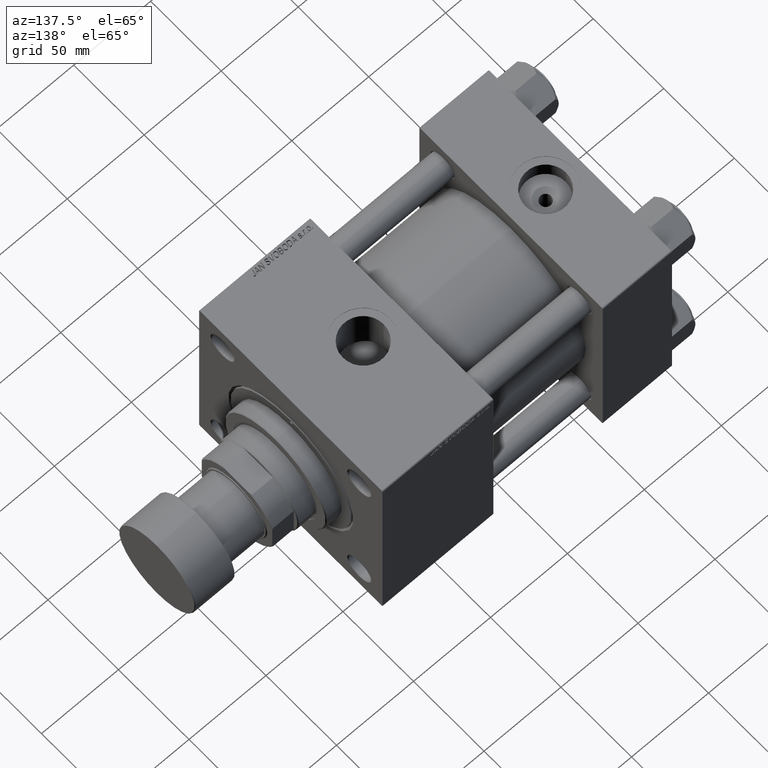
[diagram: clean part render]
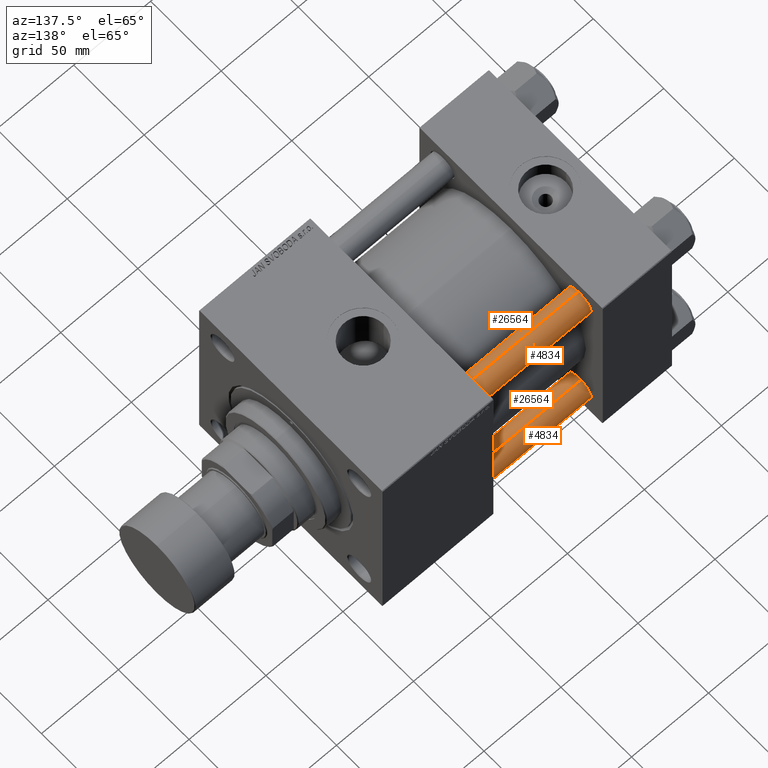
[diagram: same view with one multi-face feature highlighted, each face labeled with its STEP entity id]
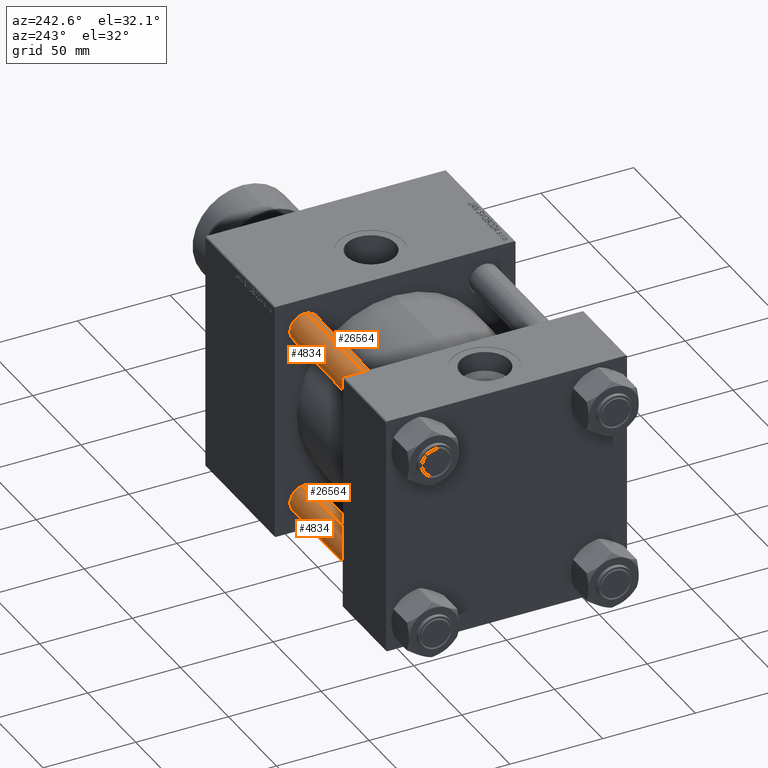
[diagram: same view with one multi-face feature highlighted, each face labeled with its STEP entity id]
A machine part, auxiliary view. The highlighted faces form ONE feature: a constant-radius fillet chain: 4 tangent blend faces with common blend radius 8 mm. The faces share edges in the B-rep.
A second angle (auxiliary view) of the same feature is appended — it is thin or edge-on in the first view.
Their STEP definitions:
[1] entity #4834 (Cylinder):
#216 = ORIENTED_EDGE ( 'NONE', *, *, #28039, .T. ) ;
#1805 = CYLINDRICAL_SURFACE ( 'NONE', #33446, 8.000000000000000000 ) ;
#3067 = CARTESIAN_POINT ( 'NONE',  ( 0.000000000000000000, 0.000000000000000000, 0.5000000000000281997 ) ) ;
#4834 = ADVANCED_FACE ( 'NONE', ( #38309 ), #1805, .T. ) ;
#5837 = DIRECTION ( 'NONE',  ( -0.000000000000000000, -0.000000000000000000, -1.000000000000000000 ) ) ;
#9606 = CARTESIAN_POINT ( 'NONE',  ( 0.000000000000000000, 0.000000000000000000, 149.0000000000000000 ) ) ;
#10481 = VERTEX_POINT ( 'NONE', #47205 ) ;
#10482 = ORIENTED_EDGE ( 'NONE', *, *, #31872, .T. ) ;
#11809 = LINE ( 'NONE', #15036, #51042 ) ;
#11877 = LINE ( 'NONE', #51846, #50621 ) ;
#12466 = EDGE_CURVE ( 'NONE', #10481, #46199, #11809, .T. ) ;
#12677 = DIRECTION ( 'NONE',  ( 0.000000000000000000, 0.000000000000000000, -1.000000000000000000 ) ) ;
#15036 = CARTESIAN_POINT ( 'NONE',  ( -8.000000000000000000, 0.000000000000000000, 149.0000000000000000 ) ) ;
#17611 = EDGE_LOOP ( 'NONE', ( #10482, #216, #37204, #42153 ) ) ;
#18332 = CARTESIAN_POINT ( 'NONE',  ( 8.000000000000000000, 9.797174393178825657E-16, 148.5000000000000000 ) ) ;
#22394 = AXIS2_PLACEMENT_3D ( 'NONE', #33080, #12677, #49426 ) ;
#23229 = VERTEX_POINT ( 'NONE', #37042 ) ;
#27249 = CIRCLE ( 'NONE', #43498, 8.000000000000000000 ) ;
#27890 = VERTEX_POINT ( 'NONE', #18332 ) ;
#28039 = EDGE_CURVE ( 'NONE', #27890, #23229, #11877, .T. ) ;
#28040 = DIRECTION ( 'NONE',  ( -0.000000000000000000, -0.000000000000000000, 1.000000000000000000 ) ) ;
#28176 = DIRECTION ( 'NONE',  ( -0.000000000000000000, -0.000000000000000000, -1.000000000000000000 ) ) ;
#28247 = DIRECTION ( 'NONE',  ( -0.000000000000000000, -0.000000000000000000, -1.000000000000000000 ) ) ;
#28755 = CARTESIAN_POINT ( 'NONE',  ( -8.000000000000000000, 0.000000000000000000, 0.5000000000000281997 ) ) ;
#31872 = EDGE_CURVE ( 'NONE', #10481, #27890, #51540, .T. ) ;
#33080 = CARTESIAN_POINT ( 'NONE',  ( 0.000000000000000000, 0.000000000000000000, 148.5000000000000000 ) ) ;
#33446 = AXIS2_PLACEMENT_3D ( 'NONE', #9606, #5837, #47158 ) ;
#37042 = CARTESIAN_POINT ( 'NONE',  ( 8.000000000000000000, 9.797174393178825657E-16, 0.5000000000000281997 ) ) ;
#37204 = ORIENTED_EDGE ( 'NONE', *, *, #52127, .T. ) ;
#38309 = FACE_OUTER_BOUND ( 'NONE', #17611, .T. ) ;
#40107 = DIRECTION ( 'NONE',  ( 1.000000000000000000, 0.000000000000000000, 0.000000000000000000 ) ) ;
#42153 = ORIENTED_EDGE ( 'NONE', *, *, #12466, .F. ) ;
#43498 = AXIS2_PLACEMENT_3D ( 'NONE', #3067, #28040, #40107 ) ;
#46199 = VERTEX_POINT ( 'NONE', #28755 ) ;
#47158 = DIRECTION ( 'NONE',  ( -1.000000000000000000, 0.000000000000000000, 0.000000000000000000 ) ) ;
#47205 = CARTESIAN_POINT ( 'NONE',  ( -8.000000000000000000, 0.000000000000000000, 148.5000000000000000 ) ) ;
#49426 = DIRECTION ( 'NONE',  ( 1.000000000000000000, 0.000000000000000000, 0.000000000000000000 ) ) ;
#50621 = VECTOR ( 'NONE', #28247, 1000.000000000000000 ) ;
#51042 = VECTOR ( 'NONE', #28176, 1000.000000000000000 ) ;
#51540 = CIRCLE ( 'NONE', #22394, 8.000000000000000000 ) ;
#51846 = CARTESIAN_POINT ( 'NONE',  ( 8.000000000000000000, 9.797174393178825657E-16, 149.0000000000000000 ) ) ;
#52127 = EDGE_CURVE ( 'NONE', #23229, #46199, #27249, .T. ) ;
[2] entity #26564 (Cylinder):
#2650 = ORIENTED_EDGE ( 'NONE', *, *, #12466, .T. ) ;
#3621 = DIRECTION ( 'NONE',  ( 0.000000000000000000, 0.000000000000000000, -1.000000000000000000 ) ) ;
#4154 = DIRECTION ( 'NONE',  ( 1.000000000000000000, 0.000000000000000000, 0.000000000000000000 ) ) ;
#4967 = DIRECTION ( 'NONE',  ( -1.000000000000000000, 0.000000000000000000, 0.000000000000000000 ) ) ;
#6704 = EDGE_CURVE ( 'NONE', #46199, #23229, #36930, .T. ) ;
#8187 = AXIS2_PLACEMENT_3D ( 'NONE', #11962, #3621, #4154 ) ;
#10179 = CARTESIAN_POINT ( 'NONE',  ( 0.000000000000000000, 0.000000000000000000, 0.5000000000000281997 ) ) ;
#10481 = VERTEX_POINT ( 'NONE', #47205 ) ;
#11809 = LINE ( 'NONE', #15036, #51042 ) ;
#11877 = LINE ( 'NONE', #51846, #50621 ) ;
#11962 = CARTESIAN_POINT ( 'NONE',  ( 0.000000000000000000, 0.000000000000000000, 148.5000000000000000 ) ) ;
#12466 = EDGE_CURVE ( 'NONE', #10481, #46199, #11809, .T. ) ;
#13287 = CYLINDRICAL_SURFACE ( 'NONE', #23203, 8.000000000000000000 ) ;
#15036 = CARTESIAN_POINT ( 'NONE',  ( -8.000000000000000000, 0.000000000000000000, 149.0000000000000000 ) ) ;
#17075 = DIRECTION ( 'NONE',  ( -0.000000000000000000, -0.000000000000000000, -1.000000000000000000 ) ) ;
#17442 = AXIS2_PLACEMENT_3D ( 'NONE', #10179, #26549, #42895 ) ;
#17583 = FACE_OUTER_BOUND ( 'NONE', #46475, .T. ) ;
#18332 = CARTESIAN_POINT ( 'NONE',  ( 8.000000000000000000, 9.797174393178825657E-16, 148.5000000000000000 ) ) ;
#23203 = AXIS2_PLACEMENT_3D ( 'NONE', #45747, #17075, #4967 ) ;
#23229 = VERTEX_POINT ( 'NONE', #37042 ) ;
#26549 = DIRECTION ( 'NONE',  ( -0.000000000000000000, -0.000000000000000000, 1.000000000000000000 ) ) ;
#26564 = ADVANCED_FACE ( 'NONE', ( #17583 ), #13287, .T. ) ;
#27890 = VERTEX_POINT ( 'NONE', #18332 ) ;
#28039 = EDGE_CURVE ( 'NONE', #27890, #23229, #11877, .T. ) ;
#28176 = DIRECTION ( 'NONE',  ( -0.000000000000000000, -0.000000000000000000, -1.000000000000000000 ) ) ;
#28247 = DIRECTION ( 'NONE',  ( -0.000000000000000000, -0.000000000000000000, -1.000000000000000000 ) ) ;
#28755 = CARTESIAN_POINT ( 'NONE',  ( -8.000000000000000000, 0.000000000000000000, 0.5000000000000281997 ) ) ;
#29600 = CIRCLE ( 'NONE', #8187, 8.000000000000000000 ) ;
#32839 = ORIENTED_EDGE ( 'NONE', *, *, #42313, .T. ) ;
#36930 = CIRCLE ( 'NONE', #17442, 8.000000000000000000 ) ;
#37042 = CARTESIAN_POINT ( 'NONE',  ( 8.000000000000000000, 9.797174393178825657E-16, 0.5000000000000281997 ) ) ;
#37291 = ORIENTED_EDGE ( 'NONE', *, *, #6704, .T. ) ;
#40050 = ORIENTED_EDGE ( 'NONE', *, *, #28039, .F. ) ;
#42313 = EDGE_CURVE ( 'NONE', #27890, #10481, #29600, .T. ) ;
#42895 = DIRECTION ( 'NONE',  ( 1.000000000000000000, 0.000000000000000000, 0.000000000000000000 ) ) ;
#45747 = CARTESIAN_POINT ( 'NONE',  ( 0.000000000000000000, 0.000000000000000000, 149.0000000000000000 ) ) ;
#46199 = VERTEX_POINT ( 'NONE', #28755 ) ;
#46475 = EDGE_LOOP ( 'NONE', ( #40050, #32839, #2650, #37291 ) ) ;
#47205 = CARTESIAN_POINT ( 'NONE',  ( -8.000000000000000000, 0.000000000000000000, 148.5000000000000000 ) ) ;
#50621 = VECTOR ( 'NONE', #28247, 1000.000000000000000 ) ;
#51042 = VECTOR ( 'NONE', #28176, 1000.000000000000000 ) ;
#51846 = CARTESIAN_POINT ( 'NONE',  ( 8.000000000000000000, 9.797174393178825657E-16, 149.0000000000000000 ) ) ;
[3] entity #4834 (Cylinder):
#216 = ORIENTED_EDGE ( 'NONE', *, *, #28039, .T. ) ;
#1805 = CYLINDRICAL_SURFACE ( 'NONE', #33446, 8.000000000000000000 ) ;
#3067 = CARTESIAN_POINT ( 'NONE',  ( 0.000000000000000000, 0.000000000000000000, 0.5000000000000281997 ) ) ;
#4834 = ADVANCED_FACE ( 'NONE', ( #38309 ), #1805, .T. ) ;
#5837 = DIRECTION ( 'NONE',  ( -0.000000000000000000, -0.000000000000000000, -1.000000000000000000 ) ) ;
#9606 = CARTESIAN_POINT ( 'NONE',  ( 0.000000000000000000, 0.000000000000000000, 149.0000000000000000 ) ) ;
#10481 = VERTEX_POINT ( 'NONE', #47205 ) ;
#10482 = ORIENTED_EDGE ( 'NONE', *, *, #31872, .T. ) ;
#11809 = LINE ( 'NONE', #15036, #51042 ) ;
#11877 = LINE ( 'NONE', #51846, #50621 ) ;
#12466 = EDGE_CURVE ( 'NONE', #10481, #46199, #11809, .T. ) ;
#12677 = DIRECTION ( 'NONE',  ( 0.000000000000000000, 0.000000000000000000, -1.000000000000000000 ) ) ;
#15036 = CARTESIAN_POINT ( 'NONE',  ( -8.000000000000000000, 0.000000000000000000, 149.0000000000000000 ) ) ;
#17611 = EDGE_LOOP ( 'NONE', ( #10482, #216, #37204, #42153 ) ) ;
#18332 = CARTESIAN_POINT ( 'NONE',  ( 8.000000000000000000, 9.797174393178825657E-16, 148.5000000000000000 ) ) ;
#22394 = AXIS2_PLACEMENT_3D ( 'NONE', #33080, #12677, #49426 ) ;
#23229 = VERTEX_POINT ( 'NONE', #37042 ) ;
#27249 = CIRCLE ( 'NONE', #43498, 8.000000000000000000 ) ;
#27890 = VERTEX_POINT ( 'NONE', #18332 ) ;
#28039 = EDGE_CURVE ( 'NONE', #27890, #23229, #11877, .T. ) ;
#28040 = DIRECTION ( 'NONE',  ( -0.000000000000000000, -0.000000000000000000, 1.000000000000000000 ) ) ;
#28176 = DIRECTION ( 'NONE',  ( -0.000000000000000000, -0.000000000000000000, -1.000000000000000000 ) ) ;
#28247 = DIRECTION ( 'NONE',  ( -0.000000000000000000, -0.000000000000000000, -1.000000000000000000 ) ) ;
#28755 = CARTESIAN_POINT ( 'NONE',  ( -8.000000000000000000, 0.000000000000000000, 0.5000000000000281997 ) ) ;
#31872 = EDGE_CURVE ( 'NONE', #10481, #27890, #51540, .T. ) ;
#33080 = CARTESIAN_POINT ( 'NONE',  ( 0.000000000000000000, 0.000000000000000000, 148.5000000000000000 ) ) ;
#33446 = AXIS2_PLACEMENT_3D ( 'NONE', #9606, #5837, #47158 ) ;
#37042 = CARTESIAN_POINT ( 'NONE',  ( 8.000000000000000000, 9.797174393178825657E-16, 0.5000000000000281997 ) ) ;
#37204 = ORIENTED_EDGE ( 'NONE', *, *, #52127, .T. ) ;
#38309 = FACE_OUTER_BOUND ( 'NONE', #17611, .T. ) ;
#40107 = DIRECTION ( 'NONE',  ( 1.000000000000000000, 0.000000000000000000, 0.000000000000000000 ) ) ;
#42153 = ORIENTED_EDGE ( 'NONE', *, *, #12466, .F. ) ;
#43498 = AXIS2_PLACEMENT_3D ( 'NONE', #3067, #28040, #40107 ) ;
#46199 = VERTEX_POINT ( 'NONE', #28755 ) ;
#47158 = DIRECTION ( 'NONE',  ( -1.000000000000000000, 0.000000000000000000, 0.000000000000000000 ) ) ;
#47205 = CARTESIAN_POINT ( 'NONE',  ( -8.000000000000000000, 0.000000000000000000, 148.5000000000000000 ) ) ;
#49426 = DIRECTION ( 'NONE',  ( 1.000000000000000000, 0.000000000000000000, 0.000000000000000000 ) ) ;
#50621 = VECTOR ( 'NONE', #28247, 1000.000000000000000 ) ;
#51042 = VECTOR ( 'NONE', #28176, 1000.000000000000000 ) ;
#51540 = CIRCLE ( 'NONE', #22394, 8.000000000000000000 ) ;
#51846 = CARTESIAN_POINT ( 'NONE',  ( 8.000000000000000000, 9.797174393178825657E-16, 149.0000000000000000 ) ) ;
#52127 = EDGE_CURVE ( 'NONE', #23229, #46199, #27249, .T. ) ;
[4] entity #26564 (Cylinder):
#2650 = ORIENTED_EDGE ( 'NONE', *, *, #12466, .T. ) ;
#3621 = DIRECTION ( 'NONE',  ( 0.000000000000000000, 0.000000000000000000, -1.000000000000000000 ) ) ;
#4154 = DIRECTION ( 'NONE',  ( 1.000000000000000000, 0.000000000000000000, 0.000000000000000000 ) ) ;
#4967 = DIRECTION ( 'NONE',  ( -1.000000000000000000, 0.000000000000000000, 0.000000000000000000 ) ) ;
#6704 = EDGE_CURVE ( 'NONE', #46199, #23229, #36930, .T. ) ;
#8187 = AXIS2_PLACEMENT_3D ( 'NONE', #11962, #3621, #4154 ) ;
#10179 = CARTESIAN_POINT ( 'NONE',  ( 0.000000000000000000, 0.000000000000000000, 0.5000000000000281997 ) ) ;
#10481 = VERTEX_POINT ( 'NONE', #47205 ) ;
#11809 = LINE ( 'NONE', #15036, #51042 ) ;
#11877 = LINE ( 'NONE', #51846, #50621 ) ;
#11962 = CARTESIAN_POINT ( 'NONE',  ( 0.000000000000000000, 0.000000000000000000, 148.5000000000000000 ) ) ;
#12466 = EDGE_CURVE ( 'NONE', #10481, #46199, #11809, .T. ) ;
#13287 = CYLINDRICAL_SURFACE ( 'NONE', #23203, 8.000000000000000000 ) ;
#15036 = CARTESIAN_POINT ( 'NONE',  ( -8.000000000000000000, 0.000000000000000000, 149.0000000000000000 ) ) ;
#17075 = DIRECTION ( 'NONE',  ( -0.000000000000000000, -0.000000000000000000, -1.000000000000000000 ) ) ;
#17442 = AXIS2_PLACEMENT_3D ( 'NONE', #10179, #26549, #42895 ) ;
#17583 = FACE_OUTER_BOUND ( 'NONE', #46475, .T. ) ;
#18332 = CARTESIAN_POINT ( 'NONE',  ( 8.000000000000000000, 9.797174393178825657E-16, 148.5000000000000000 ) ) ;
#23203 = AXIS2_PLACEMENT_3D ( 'NONE', #45747, #17075, #4967 ) ;
#23229 = VERTEX_POINT ( 'NONE', #37042 ) ;
#26549 = DIRECTION ( 'NONE',  ( -0.000000000000000000, -0.000000000000000000, 1.000000000000000000 ) ) ;
#26564 = ADVANCED_FACE ( 'NONE', ( #17583 ), #13287, .T. ) ;
#27890 = VERTEX_POINT ( 'NONE', #18332 ) ;
#28039 = EDGE_CURVE ( 'NONE', #27890, #23229, #11877, .T. ) ;
#28176 = DIRECTION ( 'NONE',  ( -0.000000000000000000, -0.000000000000000000, -1.000000000000000000 ) ) ;
#28247 = DIRECTION ( 'NONE',  ( -0.000000000000000000, -0.000000000000000000, -1.000000000000000000 ) ) ;
#28755 = CARTESIAN_POINT ( 'NONE',  ( -8.000000000000000000, 0.000000000000000000, 0.5000000000000281997 ) ) ;
#29600 = CIRCLE ( 'NONE', #8187, 8.000000000000000000 ) ;
#32839 = ORIENTED_EDGE ( 'NONE', *, *, #42313, .T. ) ;
#36930 = CIRCLE ( 'NONE', #17442, 8.000000000000000000 ) ;
#37042 = CARTESIAN_POINT ( 'NONE',  ( 8.000000000000000000, 9.797174393178825657E-16, 0.5000000000000281997 ) ) ;
#37291 = ORIENTED_EDGE ( 'NONE', *, *, #6704, .T. ) ;
#40050 = ORIENTED_EDGE ( 'NONE', *, *, #28039, .F. ) ;
#42313 = EDGE_CURVE ( 'NONE', #27890, #10481, #29600, .T. ) ;
#42895 = DIRECTION ( 'NONE',  ( 1.000000000000000000, 0.000000000000000000, 0.000000000000000000 ) ) ;
#45747 = CARTESIAN_POINT ( 'NONE',  ( 0.000000000000000000, 0.000000000000000000, 149.0000000000000000 ) ) ;
#46199 = VERTEX_POINT ( 'NONE', #28755 ) ;
#46475 = EDGE_LOOP ( 'NONE', ( #40050, #32839, #2650, #37291 ) ) ;
#47205 = CARTESIAN_POINT ( 'NONE',  ( -8.000000000000000000, 0.000000000000000000, 148.5000000000000000 ) ) ;
#50621 = VECTOR ( 'NONE', #28247, 1000.000000000000000 ) ;
#51042 = VECTOR ( 'NONE', #28176, 1000.000000000000000 ) ;
#51846 = CARTESIAN_POINT ( 'NONE',  ( 8.000000000000000000, 9.797174393178825657E-16, 149.0000000000000000 ) ) ;